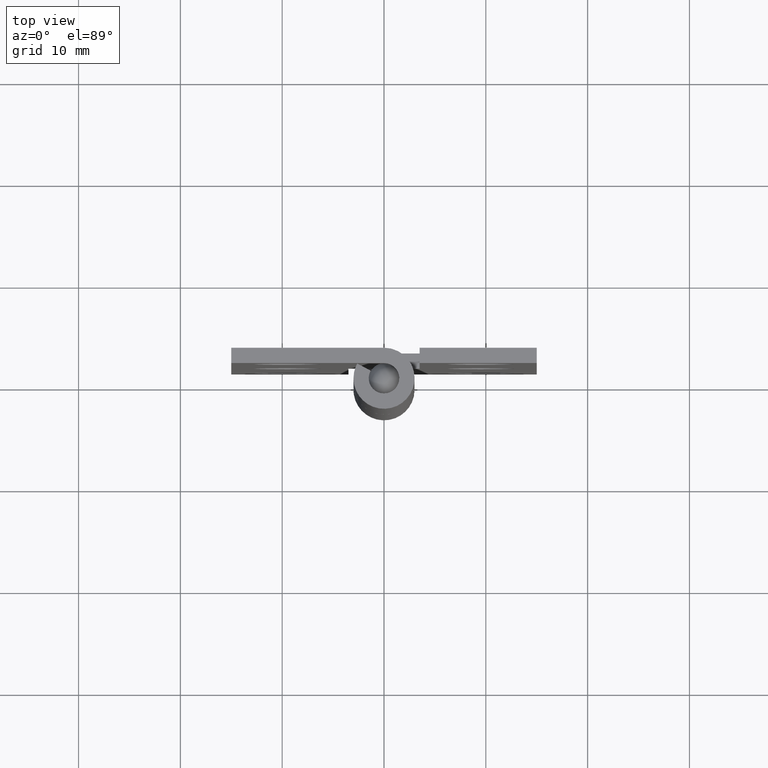
[diagram: clean part render]
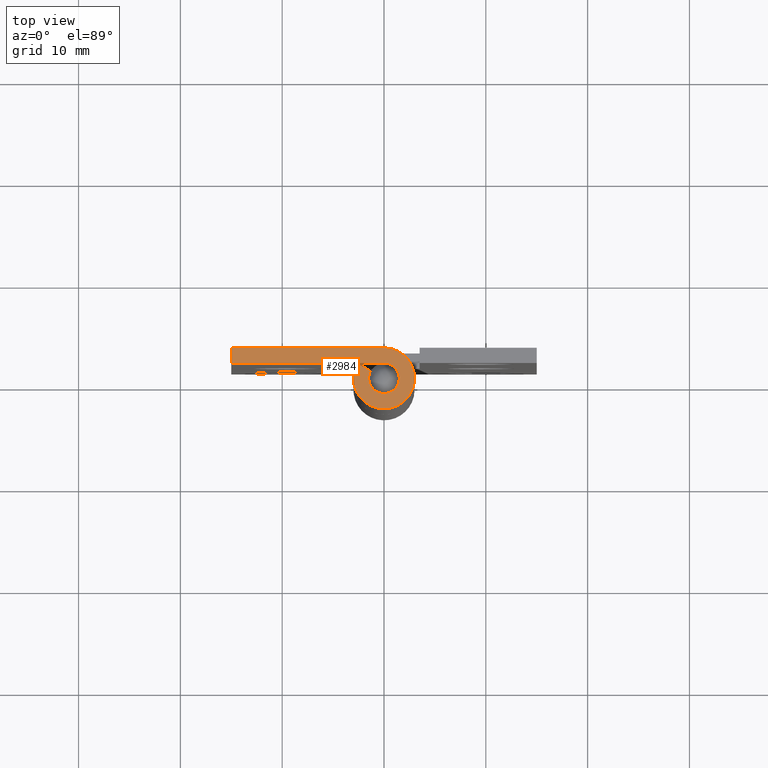
[diagram: same view with one face highlighted and labeled with its STEP entity id]
A machine part, top view. The second image highlights one B-rep face of the part: STEP entity #2984.
In plain terms, the highlighted face is a freeform B-spline surface patch.
Its self-contained STEP definition (entity closure, byte-faithful):
#2907=CARTESIAN_POINT('',(-15.899097485966180,-3.299492242140551,65.000006999999997));
#2908=CARTESIAN_POINT('',(3.899048336201415,-3.299492242140551,65.000006999999997));
#2909=CARTESIAN_POINT('',(-15.899097485966180,3.299690266042849,65.000006999999997));
#2910=CARTESIAN_POINT('',(3.899048336201415,3.299690266042849,65.000006999999997));
#2911=B_SPLINE_SURFACE_WITH_KNOTS('',1,1,((#2907,#2909),(#2908,#2910)),.UNSPECIFIED.,.F.,.F.,.U.,(2,2),(2,2),(0.0,19.798145822167591),(0.0,6.599182508183400),.UNSPECIFIED.);
#2912=CARTESIAN_POINT('',(-15.0,1.500000000000000,65.000006999999997));
#2913=VERTEX_POINT('',#2912);
#2914=CARTESIAN_POINT('',(-2.755364E-016,1.500000000000000,65.000006999999997));
#2915=VERTEX_POINT('',#2914);
#2916=CARTESIAN_POINT('',(-15.0,1.500000000000000,65.000006999999997));
#2917=CARTESIAN_POINT('',(-2.755364E-016,1.500000000000000,65.000006999999997));
#2918=QUASI_UNIFORM_CURVE('',1,(#2916,#2917),.UNSPECIFIED.,.F.,.U.);
#2919=EDGE_CURVE('',#2913,#2915,#2918,.T.);
#2920=ORIENTED_EDGE('',*,*,#2919,.T.);
#2921=CARTESIAN_POINT('',(-1.313154598666890,0.725000000000000,65.000006999999997));
#2922=VERTEX_POINT('',#2921);
#2923=CARTESIAN_POINT('',(0.0,1.500000000000000,65.000006999999997));
#2924=CARTESIAN_POINT('',(1.145299021212404,1.500000000000001,65.000006999999997));
#2925=CARTESIAN_POINT('',(1.447014444021651,0.395157182387862,65.000006999999997));
#2926=CARTESIAN_POINT('',(1.748729866830897,-0.709685635224275,65.000006999999997));
#2927=CARTESIAN_POINT('',(0.762397534098847,-1.291801068276381,65.000006999999997));
#2928=CARTESIAN_POINT('',(-0.223934798633204,-1.873916501328487,65.000006999999997));
#2929=CARTESIAN_POINT('',(-1.045325295443044,-1.075776476182164,65.000006999999997));
#2930=CARTESIAN_POINT('',(-1.866715792252885,-0.277636451035840,65.000006999999997));
#2931=CARTESIAN_POINT('',(-1.313154598666891,0.724999999999998,65.000006999999997));
#2939=(BOUNDED_CURVE()B_SPLINE_CURVE(2,(#2923,#2924,#2925,#2926,#2927,#2928,#2929,#2930,#2931),.UNSPECIFIED.,.F.,.U.)B_SPLINE_CURVE_WITH_KNOTS((3,2,2,2,3),(0.0,0.250000000000000,0.500000000000000,0.750000000000000,1.0),.UNSPECIFIED.)CURVE()GEOMETRIC_REPRESENTATION_ITEM()RATIONAL_B_SPLINE_CURVE((1.0,0.794807562115481,1.0,0.794807562115481,1.0,0.794807562115481,1.0,0.794807562115481,1.0))REPRESENTATION_ITEM(''));
#2940=EDGE_CURVE('',#2915,#2922,#2939,.T.);
#2941=ORIENTED_EDGE('',*,*,#2940,.T.);
#2942=CARTESIAN_POINT('',(-2.626309197333780,1.450000000000000,65.000006999999997));
#2943=VERTEX_POINT('',#2942);
#2944=CARTESIAN_POINT('',(-1.313154598666890,0.725000000000000,65.000006999999997));
#2945=CARTESIAN_POINT('',(-2.626309197333780,1.450000000000000,65.000006999999997));
#2946=QUASI_UNIFORM_CURVE('',1,(#2944,#2945),.UNSPECIFIED.,.F.,.U.);
#2947=EDGE_CURVE('',#2922,#2943,#2946,.T.);
#2948=ORIENTED_EDGE('',*,*,#2947,.T.);
#2949=CARTESIAN_POINT('',(1.836910E-016,3.0,65.000006999999997));
#2950=VERTEX_POINT('',#2949);
#2951=CARTESIAN_POINT('',(0.0,3.0,65.000006999999997));
#2952=CARTESIAN_POINT('',(2.290598042424808,3.0,65.000006999999997));
#2953=CARTESIAN_POINT('',(2.894028888043301,0.790314364775724,65.000006999999997));
#2954=CARTESIAN_POINT('',(3.497459733661794,-1.419371270448550,65.000006999999997));
#2955=CARTESIAN_POINT('',(1.524795068197693,-2.583602136552761,65.000006999999997));
#2956=CARTESIAN_POINT('',(-0.447869597266408,-3.747833002656974,65.000006999999997));
#2957=CARTESIAN_POINT('',(-2.090650590886088,-2.151552952364328,65.000006999999997));
#2958=CARTESIAN_POINT('',(-3.733431584505768,-0.555272902071681,65.000006999999997));
#2959=CARTESIAN_POINT('',(-2.626309197333781,1.449999999999996,65.000006999999997));
#2967=(BOUNDED_CURVE()B_SPLINE_CURVE(2,(#2951,#2952,#2953,#2954,#2955,#2956,#2957,#2958,#2959),.UNSPECIFIED.,.F.,.U.)B_SPLINE_CURVE_WITH_KNOTS((3,2,2,2,3),(0.0,0.250000000000000,0.500000000000000,0.750000000000000,1.0),.UNSPECIFIED.)CURVE()GEOMETRIC_REPRESENTATION_ITEM()RATIONAL_B_SPLINE_CURVE((1.0,0.794807562115481,1.0,0.794807562115481,1.0,0.794807562115481,1.0,0.794807562115481,1.0))REPRESENTATION_ITEM(''));
#2968=EDGE_CURVE('',#2950,#2943,#2967,.T.);
#2969=ORIENTED_EDGE('',*,*,#2968,.F.);
#2970=CARTESIAN_POINT('',(-15.0,3.0,65.000006999999997));
#2971=VERTEX_POINT('',#2970);
#2972=CARTESIAN_POINT('',(1.836910E-016,3.0,65.000006999999997));
#2973=CARTESIAN_POINT('',(-15.0,3.0,65.000006999999997));
#2974=QUASI_UNIFORM_CURVE('',1,(#2972,#2973),.UNSPECIFIED.,.F.,.U.);
#2975=EDGE_CURVE('',#2950,#2971,#2974,.T.);
#2976=ORIENTED_EDGE('',*,*,#2975,.T.);
#2977=CARTESIAN_POINT('',(-15.0,3.0,65.000006999999997));
#2978=CARTESIAN_POINT('',(-15.0,1.500000000000000,65.000006999999997));
#2979=QUASI_UNIFORM_CURVE('',1,(#2977,#2978),.UNSPECIFIED.,.F.,.U.);
#2980=EDGE_CURVE('',#2971,#2913,#2979,.T.);
#2981=ORIENTED_EDGE('',*,*,#2980,.T.);
#2982=EDGE_LOOP('',(#2920,#2941,#2948,#2969,#2976,#2981));
#2983=FACE_OUTER_BOUND('',#2982,.T.);
#2984=ADVANCED_FACE('',(#2983),#2911,.T.);